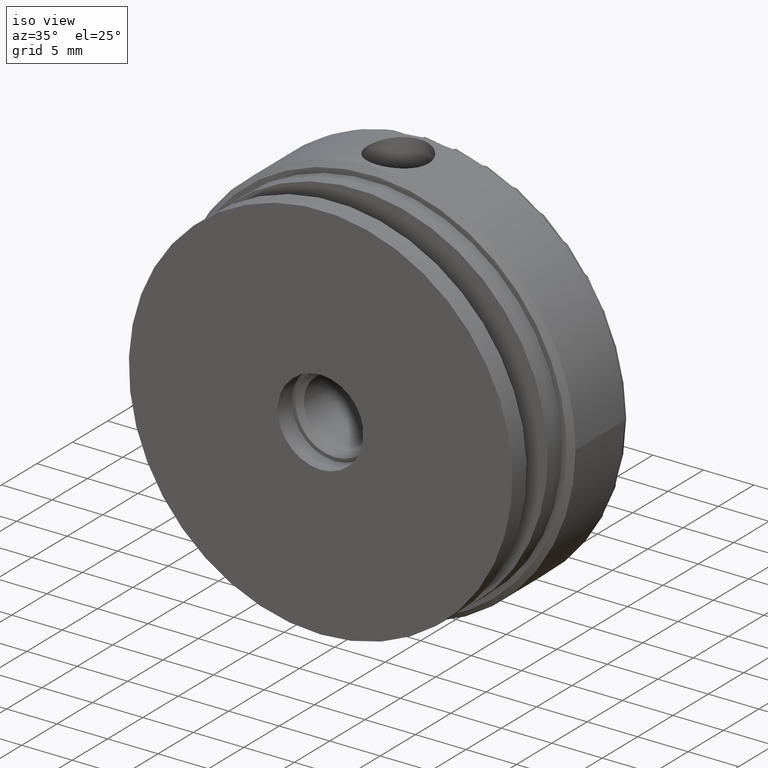
[diagram: clean part render]
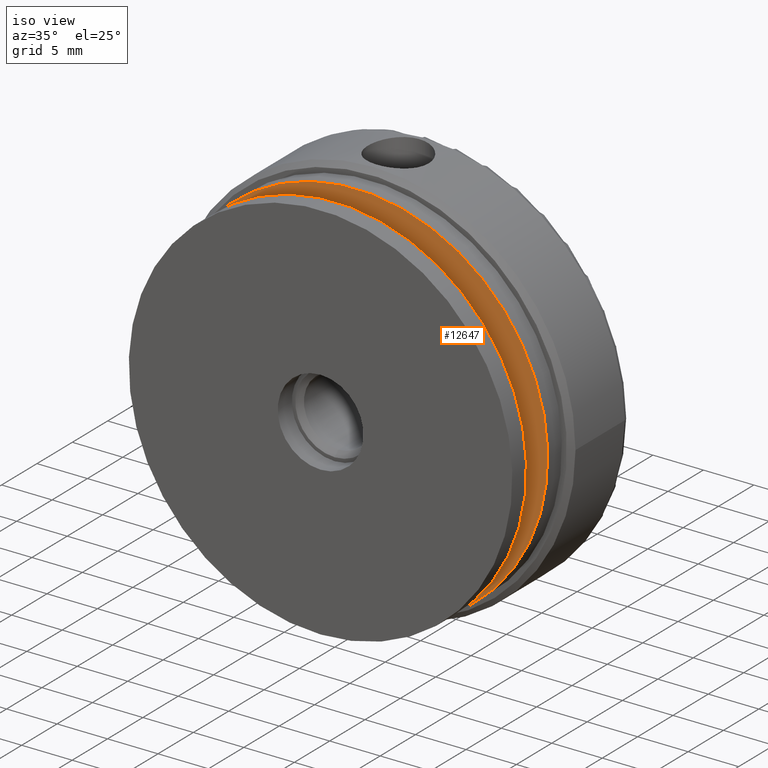
[diagram: same view with one face highlighted and labeled with its STEP entity id]
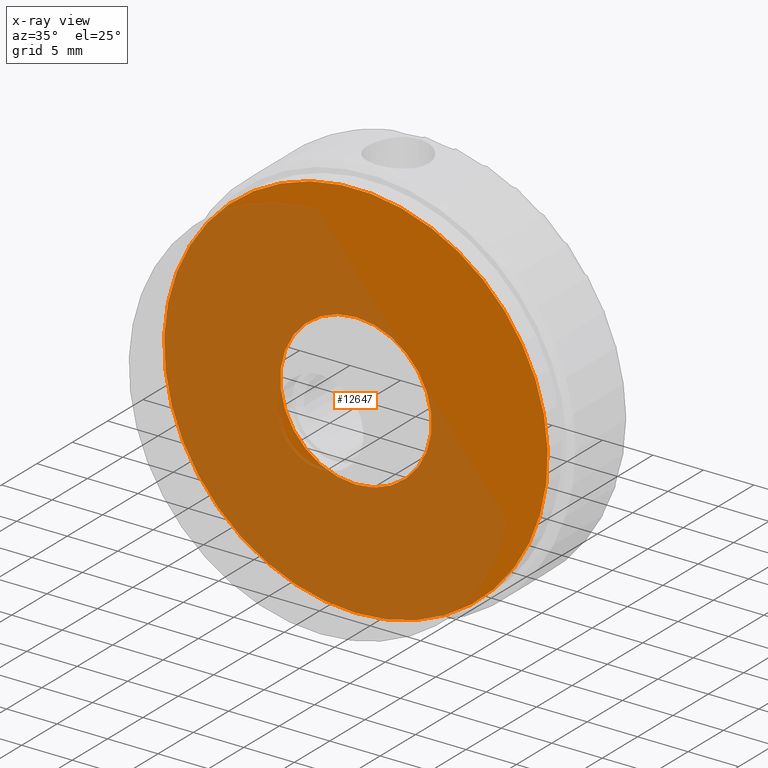
[diagram: x-ray of the same camera — body ghosted, the highlighted face saturated]
A machine part, iso view. The second image highlights one B-rep face of the part: STEP entity #12647.
The next image is the same camera in x-ray: the body ghosted, the highlighted face saturated — about 66% of this face is hidden behind the body in this view.
In plain terms, the highlighted planar face has unit normal (0, -1, 0).
Its self-contained STEP definition (entity closure, byte-faithful):
#513 = ORIENTED_EDGE ( 'NONE', *, *, #10113, .F. ) ;
#526 = CIRCLE ( 'NONE', #14458, 7.500000000000008882 ) ;
#820 = FACE_BOUND ( 'NONE', #10794, .T. ) ;
#1165 = ORIENTED_EDGE ( 'NONE', *, *, #7093, .T. ) ;
#2178 = CIRCLE ( 'NONE', #7112, 19.00000000000000000 ) ;
#2615 = PLANE ( 'NONE',  #6935 ) ;
#2773 = DIRECTION ( 'NONE',  ( 0.000000000000000000, 0.000000000000000000, 1.000000000000000000 ) ) ;
#3932 = DIRECTION ( 'NONE',  ( -0.000000000000000000, 1.000000000000000000, 0.000000000000000000 ) ) ;
#5192 = CARTESIAN_POINT ( 'NONE',  ( 19.00000000000000000, 1.999999999999999112, 0.000000000000000000 ) ) ;
#5533 = VERTEX_POINT ( 'NONE', #15086 ) ;
#6835 = CARTESIAN_POINT ( 'NONE',  ( -0.000000000000000000, 2.000000000000000000, 0.000000000000000000 ) ) ;
#6935 = AXIS2_PLACEMENT_3D ( 'NONE', #5192, #3932, #2773 ) ;
#7093 = EDGE_CURVE ( 'NONE', #13542, #13542, #526, .T. ) ;
#7112 = AXIS2_PLACEMENT_3D ( 'NONE', #6835, #7994, #7938 ) ;
#7938 = DIRECTION ( 'NONE',  ( 0.000000000000000000, 0.000000000000000000, -1.000000000000000000 ) ) ;
#7994 = DIRECTION ( 'NONE',  ( 0.000000000000000000, -1.000000000000000000, 0.000000000000000000 ) ) ;
#10113 = EDGE_CURVE ( 'NONE', #5533, #5533, #2178, .T. ) ;
#10794 = EDGE_LOOP ( 'NONE', ( #1165 ) ) ;
#11129 = FACE_OUTER_BOUND ( 'NONE', #15500, .T. ) ;
#12564 = CARTESIAN_POINT ( 'NONE',  ( 0.000000000000000000, 1.999999999999999112, 7.500000000000008882 ) ) ;
#12647 = ADVANCED_FACE ( 'NONE', ( #820, #11129 ), #2615, .T. ) ;
#13542 = VERTEX_POINT ( 'NONE', #12564 ) ;
#14179 = DIRECTION ( 'NONE',  ( 0.000000000000000000, 0.000000000000000000, 1.000000000000000000 ) ) ;
#14336 = CARTESIAN_POINT ( 'NONE',  ( -0.000000000000000000, 1.999999999999999112, 0.000000000000000000 ) ) ;
#14458 = AXIS2_PLACEMENT_3D ( 'NONE', #14336, #15502, #14179 ) ;
#15086 = CARTESIAN_POINT ( 'NONE',  ( 0.000000000000000000, 2.000000000000000000, -19.00000000000000000 ) ) ;
#15500 = EDGE_LOOP ( 'NONE', ( #513 ) ) ;
#15502 = DIRECTION ( 'NONE',  ( 0.000000000000000000, -1.000000000000000000, -0.000000000000000000 ) ) ;